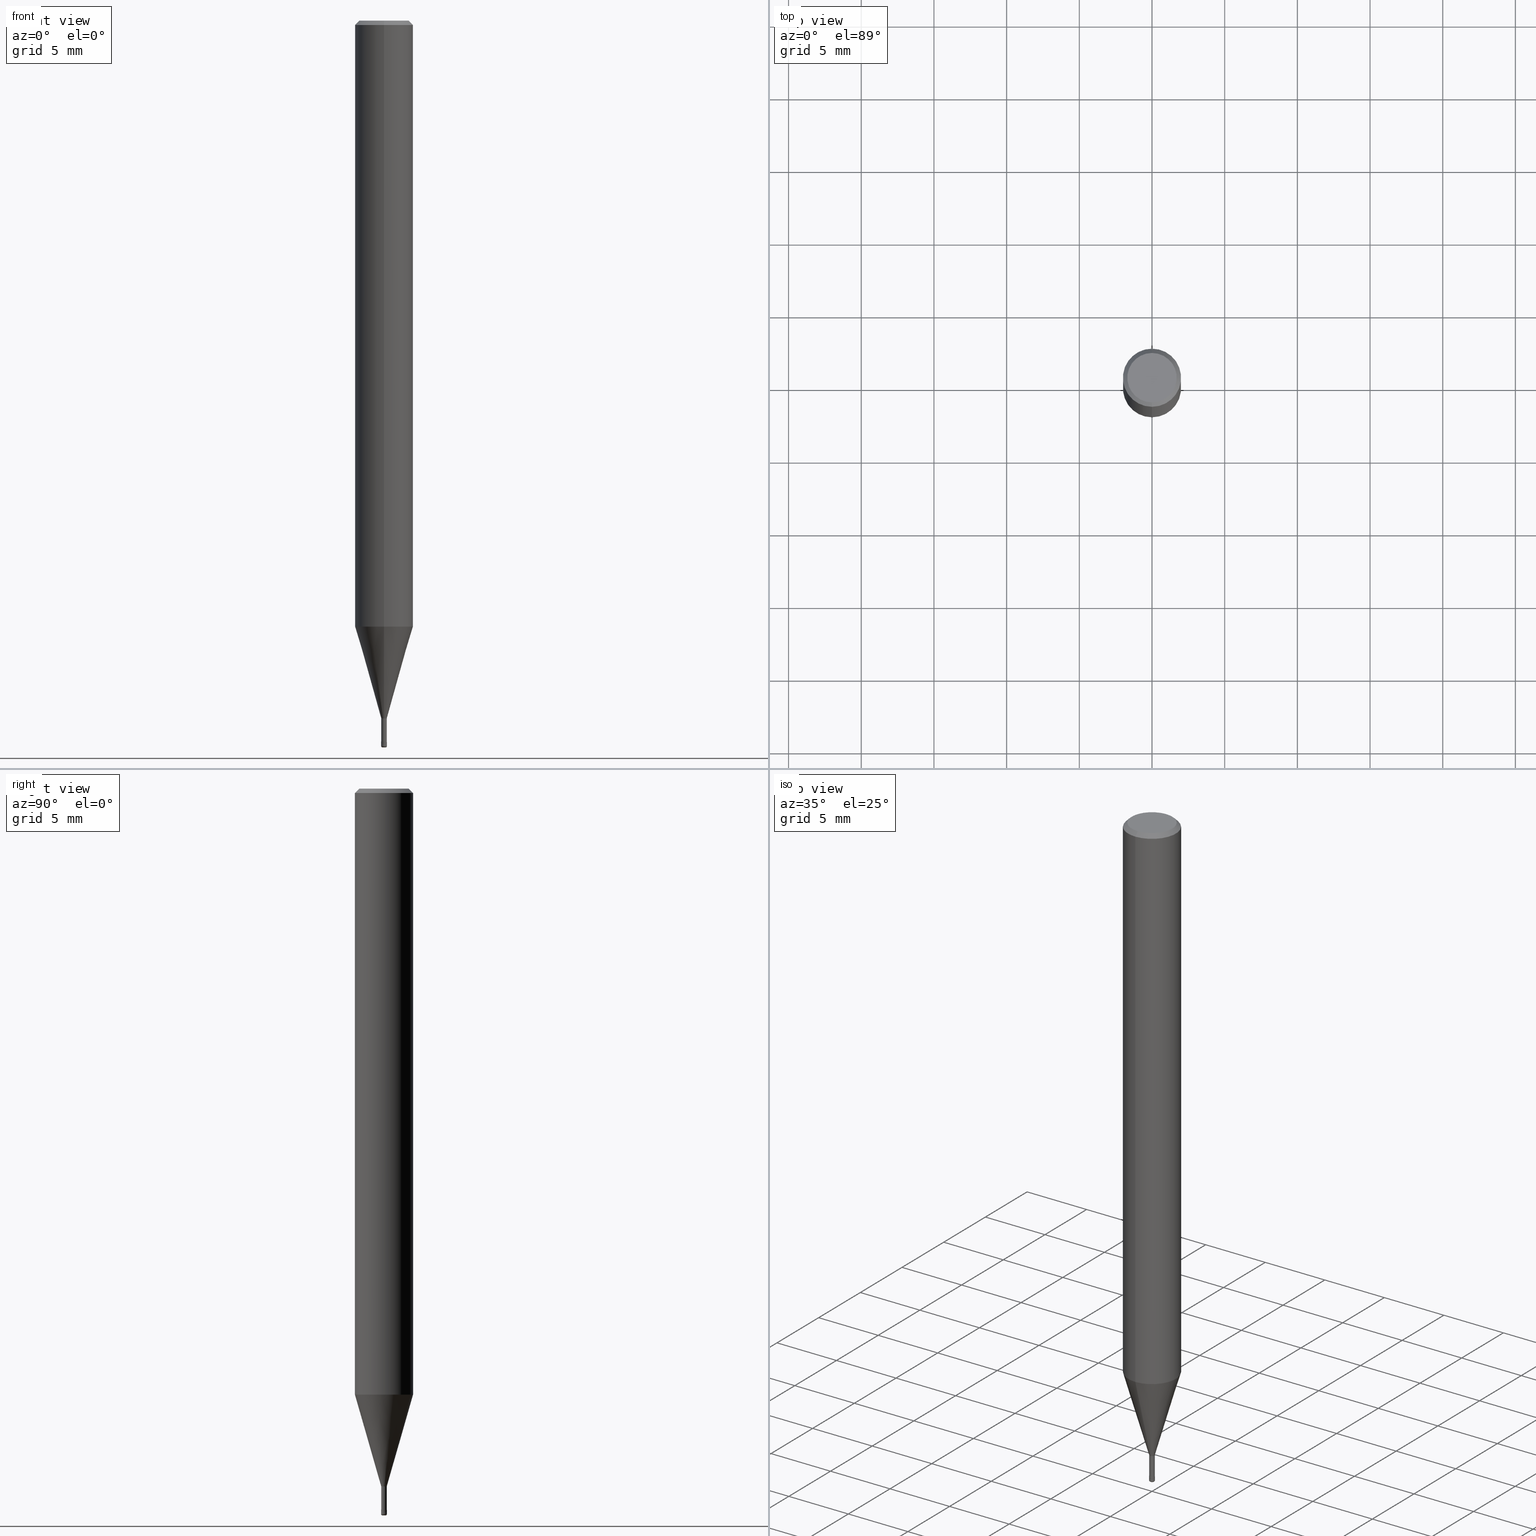
[diagram: canonical four-view strip — front | top / right | iso, engineering-drawing reading convention]
A machine part, canonical four-view strip (front | top / right | iso — engineering-drawing reading convention). The complete STEP part file that produces these views, byte-faithful:
ISO-10303-21;
HEADER;
FILE_DESCRIPTION(('no description'),'unknown implementation level');
FILE_NAME('HLRS2004-01-020-Huellk.stp','  ',('CIMSOURCE GmbH'),('CADClick - KiM GmbH - www.kimweb.de'),'unknown preprocess','ACIS','unknown authorization');
FILE_SCHEMA(('automotive_design'));
ENDSEC;
DATA;
#1=MECHANICAL_DESIGN_GEOMETRIC_PRESENTATION_REPRESENTATION(' ',(#14,#15,#16,#17,#18,#19,#20,#21,#22,#23,#24,#25,#26,#27,#28,#29,#30,#31,#32,#33,#34,#35,#36,#37,#38,#39,#40,#41,#42,#43,#44,#45,#46,#47,#48,#49,#50,#51,#52,#53,#54,#55,#56,#57,#58,#59,#60,#61,#62,#63,#64,#65,#66,#67,#68,#69,#70,#71,#72,#73,#74,#75,#76,#77,#78,#79,#80),#10);
#2=PRODUCT_DEFINITION_CONTEXT('',#81,'design');
#3=APPLICATION_PROTOCOL_DEFINITION('INTERNATIONAL STANDARD','automotive_design',1994,#81);
#4=PRODUCT_CATEGORY_RELATIONSHIP('NONE','NONE',#82,#83);
#5=SHAPE_DEFINITION_REPRESENTATION(#84,#85);
#6=PRODUCT_DEFINITION_CONTEXT('',#86,'design');
#7=APPLICATION_PROTOCOL_DEFINITION('INTERNATIONAL STANDARD','automotive_design',1994,#86);
#8=PRODUCT_CATEGORY_RELATIONSHIP('NONE','NONE',#87,#88);
#9=SHAPE_DEFINITION_REPRESENTATION(#89,#90);
#10= (GEOMETRIC_REPRESENTATION_CONTEXT(3)GLOBAL_UNCERTAINTY_ASSIGNED_CONTEXT((#93))GLOBAL_UNIT_ASSIGNED_CONTEXT((#95,#96,#97))REPRESENTATION_CONTEXT('NONE','WORKSPACE'));
#14=STYLED_ITEM('',(#99),#100);
#15=STYLED_ITEM('',(#101),#102);
#16=STYLED_ITEM('',(#103),#104);
#17=STYLED_ITEM('',(#105),#106);
#18=STYLED_ITEM('',(#107),#108);
#19=STYLED_ITEM('',(#109),#110);
#20=STYLED_ITEM('',(#111),#112);
#21=STYLED_ITEM('',(#113),#114);
#22=STYLED_ITEM('',(#115),#116);
#23=STYLED_ITEM('',(#117),#118);
#24=STYLED_ITEM('',(#119),#120);
#25=STYLED_ITEM('',(#121),#122);
#26=STYLED_ITEM('',(#123),#124);
#27=STYLED_ITEM('',(#125),#126);
#28=STYLED_ITEM('',(#127),#128);
#29=STYLED_ITEM('',(#129),#130);
#30=STYLED_ITEM('',(#131),#132);
#31=STYLED_ITEM('',(#133),#134);
#32=STYLED_ITEM('',(#135),#136);
#33=STYLED_ITEM('',(#137),#138);
#34=STYLED_ITEM('',(#139),#140);
#35=STYLED_ITEM('',(#141),#142);
#36=STYLED_ITEM('',(#143),#144);
#37=STYLED_ITEM('',(#145),#146);
#38=STYLED_ITEM('',(#147),#148);
#39=STYLED_ITEM('',(#149),#150);
#40=STYLED_ITEM('',(#151),#152);
#41=STYLED_ITEM('',(#153),#154);
#42=STYLED_ITEM('',(#155),#156);
#43=STYLED_ITEM('',(#157),#158);
#44=STYLED_ITEM('',(#159),#160);
#45=STYLED_ITEM('',(#161),#162);
#46=STYLED_ITEM('',(#163),#164);
#47=STYLED_ITEM('',(#165),#166);
#48=STYLED_ITEM('',(#167),#168);
#49=STYLED_ITEM('',(#169),#170);
#50=STYLED_ITEM('',(#171),#172);
#51=STYLED_ITEM('',(#173),#174);
#52=STYLED_ITEM('',(#175),#176);
#53=STYLED_ITEM('',(#177),#178);
#54=STYLED_ITEM('',(#179),#180);
#55=STYLED_ITEM('',(#181),#182);
#56=STYLED_ITEM('',(#183),#184);
#57=STYLED_ITEM('',(#185),#186);
#58=STYLED_ITEM('',(#187),#188);
#59=STYLED_ITEM('',(#189),#190);
#60=STYLED_ITEM('',(#191),#192);
#61=STYLED_ITEM('',(#193),#194);
#62=STYLED_ITEM('',(#195),#196);
#63=STYLED_ITEM('',(#197),#198);
#64=STYLED_ITEM('',(#199),#200);
#65=STYLED_ITEM('',(#201),#202);
#66=STYLED_ITEM('',(#203),#204);
#67=STYLED_ITEM('',(#205),#206);
#68=STYLED_ITEM('',(#207),#208);
#69=STYLED_ITEM('',(#209),#210);
#70=STYLED_ITEM('',(#211),#212);
#71=STYLED_ITEM('',(#213),#214);
#72=STYLED_ITEM('',(#215),#216);
#73=STYLED_ITEM('',(#217),#218);
#74=STYLED_ITEM('',(#219),#220);
#75=STYLED_ITEM('',(#221),#222);
#76=STYLED_ITEM('',(#223),#224);
#77=STYLED_ITEM('',(#225),#226);
#78=STYLED_ITEM('',(#227),#228);
#79=STYLED_ITEM('',(#229),#230);
#80=STYLED_ITEM('',(#231),#232);
#81=APPLICATION_CONTEXT(' ');
#82=PRODUCT_CATEGORY('part','NONE');
#83=PRODUCT_RELATED_PRODUCT_CATEGORY('detail',' ',(#233));
#84=PRODUCT_DEFINITION_SHAPE('NONE','NONE',#234);
#85=ADVANCED_BREP_SHAPE_REPRESENTATION('1',(#220,#235),#10);
#86=APPLICATION_CONTEXT(' ');
#87=PRODUCT_CATEGORY('part','NONE');
#88=PRODUCT_RELATED_PRODUCT_CATEGORY('detail',' ',(#236));
#89=PRODUCT_DEFINITION_SHAPE('NONE','NONE',#237);
#90=ADVANCED_BREP_SHAPE_REPRESENTATION('2',(#192,#238),#10);
#93=UNCERTAINTY_MEASURE_WITH_UNIT(LENGTH_MEASURE(1.0E-006),#95,'','');
#95= (CONVERSION_BASED_UNIT('MILLIMETRE',#241)LENGTH_UNIT()NAMED_UNIT(#244));
#96= (NAMED_UNIT(#246)PLANE_ANGLE_UNIT()SI_UNIT($,.RADIAN.));
#97= (NAMED_UNIT(#246)SOLID_ANGLE_UNIT()SI_UNIT($,.STERADIAN.));
#99=PRESENTATION_STYLE_ASSIGNMENT((#252));
#100=VERTEX_POINT('',#253);
#101=PRESENTATION_STYLE_ASSIGNMENT((#254));
#102=VERTEX_POINT('',#255);
#103=PRESENTATION_STYLE_ASSIGNMENT((#256));
#104=ADVANCED_FACE('',(#257),#258,.T.);
#105=PRESENTATION_STYLE_ASSIGNMENT((#259));
#106=VERTEX_POINT('',#260);
#107=PRESENTATION_STYLE_ASSIGNMENT((#261));
#108=EDGE_CURVE('',#100,#164,#262,.T.);
#109=PRESENTATION_STYLE_ASSIGNMENT((#263));
#110=VERTEX_POINT('',#264);
#111=PRESENTATION_STYLE_ASSIGNMENT((#265));
#112=EDGE_CURVE('',#182,#226,#266,.T.);
#113=PRESENTATION_STYLE_ASSIGNMENT((#267));
#114=ADVANCED_FACE('',(#268),#269,.T.);
#115=PRESENTATION_STYLE_ASSIGNMENT((#270));
#116=VERTEX_POINT('',#271);
#117=PRESENTATION_STYLE_ASSIGNMENT((#272));
#118=ADVANCED_FACE('',(#273),#274,.T.);
#119=PRESENTATION_STYLE_ASSIGNMENT((#275));
#120=VERTEX_POINT('',#276);
#121=PRESENTATION_STYLE_ASSIGNMENT((#277));
#122=EDGE_CURVE('',#224,#230,#278,.T.);
#123=PRESENTATION_STYLE_ASSIGNMENT((#279));
#124=EDGE_CURVE('',#230,#100,#280,.T.);
#125=PRESENTATION_STYLE_ASSIGNMENT((#281));
#126=VERTEX_POINT('',#282);
#127=PRESENTATION_STYLE_ASSIGNMENT((#283));
#128=EDGE_CURVE('',#226,#182,#284,.T.);
#129=PRESENTATION_STYLE_ASSIGNMENT((#285));
#130=EDGE_CURVE('',#116,#106,#286,.T.);
#131=PRESENTATION_STYLE_ASSIGNMENT((#287));
#132=EDGE_CURVE('',#218,#116,#288,.T.);
#133=PRESENTATION_STYLE_ASSIGNMENT((#289));
#134=EDGE_CURVE('',#164,#174,#290,.T.);
#135=PRESENTATION_STYLE_ASSIGNMENT((#291));
#136=EDGE_CURVE('',#178,#218,#292,.T.);
#137=PRESENTATION_STYLE_ASSIGNMENT((#293));
#138=ADVANCED_FACE('',(#294),#295,.T.);
#139=PRESENTATION_STYLE_ASSIGNMENT((#296));
#140=ADVANCED_FACE('',(#297),#298,.T.);
#141=PRESENTATION_STYLE_ASSIGNMENT((#299));
#142=EDGE_CURVE('',#100,#230,#300,.T.);
#143=PRESENTATION_STYLE_ASSIGNMENT((#301));
#144=EDGE_CURVE('',#110,#158,#302,.T.);
#145=PRESENTATION_STYLE_ASSIGNMENT((#303));
#146=VERTEX_POINT('',#304);
#147=PRESENTATION_STYLE_ASSIGNMENT((#305));
#148=ADVANCED_FACE('',(#306),#307,.T.);
#149=PRESENTATION_STYLE_ASSIGNMENT((#308));
#150=EDGE_CURVE('',#146,#102,#309,.T.);
#151=PRESENTATION_STYLE_ASSIGNMENT((#310));
#152=ADVANCED_FACE('',(#311),#312,.T.);
#153=PRESENTATION_STYLE_ASSIGNMENT((#313));
#154=EDGE_CURVE('',#158,#182,#314,.T.);
#155=PRESENTATION_STYLE_ASSIGNMENT((#315));
#156=EDGE_CURVE('',#102,#116,#316,.T.);
#157=PRESENTATION_STYLE_ASSIGNMENT((#317));
#158=VERTEX_POINT('',#318);
#159=PRESENTATION_STYLE_ASSIGNMENT((#319));
#160=EDGE_CURVE('',#158,#110,#320,.T.);
#161=PRESENTATION_STYLE_ASSIGNMENT((#321));
#162=EDGE_CURVE('',#120,#224,#322,.T.);
#163=PRESENTATION_STYLE_ASSIGNMENT((#323));
#164=VERTEX_POINT('',#324);
#165=PRESENTATION_STYLE_ASSIGNMENT((#325));
#166=EDGE_CURVE('',#196,#110,#326,.T.);
#167=PRESENTATION_STYLE_ASSIGNMENT((#327));
#168=EDGE_CURVE('',#126,#196,#328,.T.);
#169=PRESENTATION_STYLE_ASSIGNMENT((#329));
#170=ADVANCED_FACE('',(#330),#331,.T.);
#171=PRESENTATION_STYLE_ASSIGNMENT((#332));
#172=ADVANCED_FACE('',(#333),#334,.T.);
#173=PRESENTATION_STYLE_ASSIGNMENT((#335));
#174=VERTEX_POINT('',#336);
#175=PRESENTATION_STYLE_ASSIGNMENT((#337));
#176=EDGE_CURVE('',#226,#110,#338,.T.);
#177=PRESENTATION_STYLE_ASSIGNMENT((#339));
#178=VERTEX_POINT('',#340);
#179=PRESENTATION_STYLE_ASSIGNMENT((#341));
#180=ADVANCED_FACE('',(#342),#343,.T.);
#181=PRESENTATION_STYLE_ASSIGNMENT((#344));
#182=VERTEX_POINT('',#345);
#183=PRESENTATION_STYLE_ASSIGNMENT((#346));
#184=ADVANCED_FACE('',(#347),#348,.T.);
#185=PRESENTATION_STYLE_ASSIGNMENT((#349));
#186=EDGE_CURVE('',#158,#126,#350,.T.);
#187=PRESENTATION_STYLE_ASSIGNMENT((#351));
#188=EDGE_CURVE('',#146,#106,#352,.T.);
#189=PRESENTATION_STYLE_ASSIGNMENT((#353));
#190=ADVANCED_FACE('',(#354),#355,.T.);
#191=PRESENTATION_STYLE_ASSIGNMENT((#356));
#192=MANIFOLD_SOLID_BREP('2',#357);
#193=PRESENTATION_STYLE_ASSIGNMENT((#358));
#194=EDGE_CURVE('',#106,#146,#359,.T.);
#195=PRESENTATION_STYLE_ASSIGNMENT((#360));
#196=VERTEX_POINT('',#361);
#197=PRESENTATION_STYLE_ASSIGNMENT((#362));
#198=ADVANCED_FACE('',(#363),#364,.T.);
#199=PRESENTATION_STYLE_ASSIGNMENT((#365));
#200=EDGE_CURVE('',#120,#174,#366,.T.);
#201=PRESENTATION_STYLE_ASSIGNMENT((#367));
#202=EDGE_CURVE('',#164,#224,#368,.T.);
#203=PRESENTATION_STYLE_ASSIGNMENT((#369));
#204=ADVANCED_FACE('',(#370),#371,.T.);
#205=PRESENTATION_STYLE_ASSIGNMENT((#372));
#206=EDGE_CURVE('',#102,#178,#373,.T.);
#207=PRESENTATION_STYLE_ASSIGNMENT((#374));
#208=EDGE_CURVE('',#116,#102,#375,.T.);
#209=PRESENTATION_STYLE_ASSIGNMENT((#376));
#210=ADVANCED_FACE('',(#377),#378,.T.);
#211=PRESENTATION_STYLE_ASSIGNMENT((#379));
#212=EDGE_CURVE('',#218,#178,#380,.T.);
#213=PRESENTATION_STYLE_ASSIGNMENT((#381));
#214=EDGE_CURVE('',#196,#126,#382,.T.);
#215=PRESENTATION_STYLE_ASSIGNMENT((#383));
#216=ADVANCED_FACE('',(#384,#385),#386,.T.);
#217=PRESENTATION_STYLE_ASSIGNMENT((#387));
#218=VERTEX_POINT('',#388);
#219=PRESENTATION_STYLE_ASSIGNMENT((#389));
#220=MANIFOLD_SOLID_BREP('1',#390);
#221=PRESENTATION_STYLE_ASSIGNMENT((#391));
#222=EDGE_CURVE('',#174,#120,#392,.T.);
#223=PRESENTATION_STYLE_ASSIGNMENT((#393));
#224=VERTEX_POINT('',#394);
#225=PRESENTATION_STYLE_ASSIGNMENT((#395));
#226=VERTEX_POINT('',#396);
#227=PRESENTATION_STYLE_ASSIGNMENT((#397));
#228=EDGE_CURVE('',#224,#164,#398,.T.);
#229=PRESENTATION_STYLE_ASSIGNMENT((#399));
#230=VERTEX_POINT('',#400);
#231=PRESENTATION_STYLE_ASSIGNMENT((#401));
#232=ADVANCED_FACE('',(#402),#403,.T.);
#233=PRODUCT('1','1','PART-1-DESC',(#404));
#234=PRODUCT_DEFINITION('NONE','NONE',#405,#2);
#235=AXIS2_PLACEMENT_3D('',#406,#407,#408);
#236=PRODUCT('2','2','PART-2-DESC',(#409));
#237=PRODUCT_DEFINITION('NONE','NONE',#410,#6);
#238=AXIS2_PLACEMENT_3D('',#411,#412,#413);
#241=LENGTH_MEASURE_WITH_UNIT(LENGTH_MEASURE(1.0),#414);
#244=DIMENSIONAL_EXPONENTS(1.0,0.0,0.0,0.0,0.0,0.0,0.0);
#246=DIMENSIONAL_EXPONENTS(0.0,0.0,0.0,0.0,0.0,0.0,0.0);
#252=POINT_STYLE(' ',#415,POSITIVE_LENGTH_MEASURE(1.0E-006),#416);
#253=CARTESIAN_POINT('',(0.0,1.7,0.0));
#254=POINT_STYLE(' ',#417,POSITIVE_LENGTH_MEASURE(1.0E-006),#418);
#255=CARTESIAN_POINT('',(2.3261397690856E-017,-0.18995,-48.0));
#256=SURFACE_STYLE_USAGE(.BOTH.,#419);
#257=FACE_OUTER_BOUND('',#420,.T.);
#258=CYLINDRICAL_SURFACE('',#421,2.0);
#259=POINT_STYLE(' ',#422,POSITIVE_LENGTH_MEASURE(1.0E-006),#423);
#260=CARTESIAN_POINT('',(0.0,0.18995,-49.6));
#261=CURVE_STYLE('',#424,POSITIVE_LENGTH_MEASURE(1.0E-006),#425);
#262=LINE('',#426,#427);
#263=POINT_STYLE(' ',#428,POSITIVE_LENGTH_MEASURE(1.0E-006),#429);
#264=CARTESIAN_POINT('',(0.0,0.2,-49.9));
#265=CURVE_STYLE('',#430,POSITIVE_LENGTH_MEASURE(1.0E-006),#431);
#266=CIRCLE('',#432,0.1999);
#267=SURFACE_STYLE_USAGE(.BOTH.,#433);
#268=FACE_OUTER_BOUND('',#434,.T.);
#269=CONICAL_SURFACE('',#435,1.85,0.785398163397453);
#270=POINT_STYLE(' ',#436,POSITIVE_LENGTH_MEASURE(1.0E-006),#437);
#271=CARTESIAN_POINT('',(0.0,0.18995,-48.0));
#272=SURFACE_STYLE_USAGE(.BOTH.,#438);
#273=FACE_OUTER_BOUND('',#439,.T.);
#274=CONICAL_SURFACE('',#440,1.09495,0.279261921280279);
#275=POINT_STYLE(' ',#441,POSITIVE_LENGTH_MEASURE(1.0E-006),#442);
#276=CARTESIAN_POINT('',(2.44921270764475E-016,-2.0,-41.688));
#277=CURVE_STYLE('',#443,POSITIVE_LENGTH_MEASURE(1.0E-006),#444);
#278=LINE('',#445,#446);
#279=CURVE_STYLE('',#447,POSITIVE_LENGTH_MEASURE(1.0E-006),#448);
#280=CIRCLE('',#449,1.7);
#281=POINT_STYLE(' ',#450,POSITIVE_LENGTH_MEASURE(1.0E-006),#451);
#282=CARTESIAN_POINT('',(1.22460635382238E-017,-0.1,-50.0));
#283=CURVE_STYLE('',#452,POSITIVE_LENGTH_MEASURE(1.0E-006),#453);
#284=CIRCLE('',#454,0.1999);
#285=CURVE_STYLE('',#455,POSITIVE_LENGTH_MEASURE(1.0E-006),#456);
#286=LINE('',#457,#458);
#287=CURVE_STYLE('',#459,POSITIVE_LENGTH_MEASURE(1.0E-006),#460);
#288=LINE('',#461,#462);
#289=CURVE_STYLE('',#463,POSITIVE_LENGTH_MEASURE(1.0E-006),#464);
#290=LINE('',#465,#466);
#291=CURVE_STYLE('',#467,POSITIVE_LENGTH_MEASURE(1.0E-006),#468);
#292=CIRCLE('',#469,1.99995);
#293=SURFACE_STYLE_USAGE(.BOTH.,#470);
#294=FACE_OUTER_BOUND('',#471,.T.);
#295=PLANE('',#472);
#296=SURFACE_STYLE_USAGE(.BOTH.,#473);
#297=FACE_OUTER_BOUND('',#474,.T.);
#298=CONICAL_SURFACE('',#475,0.19995,0.000333333320987711);
#299=CURVE_STYLE('',#476,POSITIVE_LENGTH_MEASURE(1.0E-006),#477);
#300=CIRCLE('',#478,1.7);
#301=CURVE_STYLE('',#479,POSITIVE_LENGTH_MEASURE(1.0E-006),#480);
#302=CIRCLE('',#481,0.2);
#303=POINT_STYLE(' ',#482,POSITIVE_LENGTH_MEASURE(1.0E-006),#483);
#304=CARTESIAN_POINT('',(2.32613976908561E-017,-0.18995,-49.6));
#305=SURFACE_STYLE_USAGE(.BOTH.,#484);
#306=FACE_OUTER_BOUND('',#485,.T.);
#307=CYLINDRICAL_SURFACE('',#486,0.18995);
#308=CURVE_STYLE('',#487,POSITIVE_LENGTH_MEASURE(1.0E-006),#488);
#309=LINE('',#489,#490);
#310=SURFACE_STYLE_USAGE(.BOTH.,#491);
#311=FACE_OUTER_BOUND('',#492,.T.);
#312=CONICAL_SURFACE('',#493,1.85,0.785398163397453);
#313=CURVE_STYLE('',#494,POSITIVE_LENGTH_MEASURE(1.0E-006),#495);
#314=LINE('',#496,#497);
#315=CURVE_STYLE('',#498,POSITIVE_LENGTH_MEASURE(1.0E-006),#499);
#316=CIRCLE('',#500,0.18995);
#317=POINT_STYLE(' ',#501,POSITIVE_LENGTH_MEASURE(1.0E-006),#502);
#318=CARTESIAN_POINT('',(2.44921270764475E-017,-0.2,-49.9));
#319=CURVE_STYLE('',#503,POSITIVE_LENGTH_MEASURE(1.0E-006),#504);
#320=CIRCLE('',#505,0.2);
#321=CURVE_STYLE('',#506,POSITIVE_LENGTH_MEASURE(1.0E-006),#507);
#322=LINE('',#508,#509);
#323=POINT_STYLE(' ',#510,POSITIVE_LENGTH_MEASURE(1.0E-006),#511);
#324=CARTESIAN_POINT('',(0.0,2.0,-0.299999999999997));
#325=CURVE_STYLE('',#512,POSITIVE_LENGTH_MEASURE(1.0E-006),#513);
#326=CIRCLE('',#514,0.1);
#327=CURVE_STYLE('',#515,POSITIVE_LENGTH_MEASURE(1.0E-006),#516);
#328=CIRCLE('',#517,0.1);
#329=SURFACE_STYLE_USAGE(.BOTH.,#518);
#330=FACE_OUTER_BOUND('',#519,.T.);
#331=CONICAL_SURFACE('',#520,1.09495,0.279261921280279);
#332=SURFACE_STYLE_USAGE(.BOTH.,#521);
#333=FACE_OUTER_BOUND('',#522,.T.);
#334=PLANE('',#523);
#335=POINT_STYLE(' ',#524,POSITIVE_LENGTH_MEASURE(1.0E-006),#525);
#336=CARTESIAN_POINT('',(0.0,2.0,-41.688));
#337=CURVE_STYLE('',#526,POSITIVE_LENGTH_MEASURE(1.0E-006),#527);
#338=LINE('',#528,#529);
#339=POINT_STYLE(' ',#530,POSITIVE_LENGTH_MEASURE(1.0E-006),#531);
#340=CARTESIAN_POINT('',(2.44915147732706E-016,-1.99995,-41.688));
#341=SURFACE_STYLE_USAGE(.BOTH.,#532);
#342=FACE_OUTER_BOUND('',#533,.T.);
#343=CYLINDRICAL_SURFACE('',#534,0.18995);
#344=POINT_STYLE(' ',#535,POSITIVE_LENGTH_MEASURE(1.0E-006),#536);
#345=CARTESIAN_POINT('',(2.44798810129093E-017,-0.1999,-49.6));
#346=SURFACE_STYLE_USAGE(.BOTH.,#537);
#347=FACE_OUTER_BOUND('',#538,.T.);
#348=TOROIDAL_SURFACE('',#539,0.0999999999999997,0.1);
#349=CURVE_STYLE('',#540,POSITIVE_LENGTH_MEASURE(1.0E-006),#541);
#350=CIRCLE('',#542,0.1);
#351=CURVE_STYLE('',#543,POSITIVE_LENGTH_MEASURE(1.0E-006),#544);
#352=CIRCLE('',#545,0.18995);
#353=SURFACE_STYLE_USAGE(.BOTH.,#546);
#354=FACE_OUTER_BOUND('',#547,.T.);
#355=TOROIDAL_SURFACE('',#548,0.0999999999999997,0.1);
#356=SURFACE_STYLE_USAGE(.BOTH.,#549);
#357=CLOSED_SHELL('',(#184,#140,#138,#232,#190,#210));
#358=CURVE_STYLE('',#550,POSITIVE_LENGTH_MEASURE(1.0E-006),#551);
#359=CIRCLE('',#552,0.18995);
#360=POINT_STYLE(' ',#553,POSITIVE_LENGTH_MEASURE(1.0E-006),#554);
#361=CARTESIAN_POINT('',(0.0,0.1,-50.0));
#362=SURFACE_STYLE_USAGE(.BOTH.,#555);
#363=FACE_OUTER_BOUND('',#556,.T.);
#364=CYLINDRICAL_SURFACE('',#557,2.0);
#365=CURVE_STYLE('',#558,POSITIVE_LENGTH_MEASURE(1.0E-006),#559);
#366=CIRCLE('',#560,2.0);
#367=CURVE_STYLE('',#561,POSITIVE_LENGTH_MEASURE(1.0E-006),#562);
#368=CIRCLE('',#563,2.0);
#369=SURFACE_STYLE_USAGE(.BOTH.,#564);
#370=FACE_OUTER_BOUND('',#565,.T.);
#371=PLANE('',#566);
#372=CURVE_STYLE('',#567,POSITIVE_LENGTH_MEASURE(1.0E-006),#568);
#373=LINE('',#569,#570);
#374=CURVE_STYLE('',#571,POSITIVE_LENGTH_MEASURE(1.0E-006),#572);
#375=CIRCLE('',#573,0.18995);
#376=SURFACE_STYLE_USAGE(.BOTH.,#574);
#377=FACE_OUTER_BOUND('',#575,.T.);
#378=PLANE('',#576);
#379=CURVE_STYLE('',#577,POSITIVE_LENGTH_MEASURE(1.0E-006),#578);
#380=CIRCLE('',#579,1.99995);
#381=CURVE_STYLE('',#580,POSITIVE_LENGTH_MEASURE(1.0E-006),#581);
#382=CIRCLE('',#582,0.1);
#383=SURFACE_STYLE_USAGE(.BOTH.,#583);
#384=FACE_OUTER_BOUND('',#584,.T.);
#385=FACE_BOUND('',#585,.T.);
#386=PLANE('',#586);
#387=POINT_STYLE(' ',#587,POSITIVE_LENGTH_MEASURE(1.0E-006),#588);
#388=CARTESIAN_POINT('',(0.0,1.99995,-41.688));
#389=SURFACE_STYLE_USAGE(.BOTH.,#589);
#390=CLOSED_SHELL('',(#148,#170,#104,#114,#216,#172,#152,#198,#118,#180,#204));
#391=CURVE_STYLE('',#590,POSITIVE_LENGTH_MEASURE(1.0E-006),#591);
#392=CIRCLE('',#592,2.0);
#393=POINT_STYLE(' ',#593,POSITIVE_LENGTH_MEASURE(1.0E-006),#594);
#394=CARTESIAN_POINT('',(2.44921270764475E-016,-2.0,-0.299999999999997));
#395=POINT_STYLE(' ',#595,POSITIVE_LENGTH_MEASURE(1.0E-006),#596);
#396=CARTESIAN_POINT('',(0.0,0.1999,-49.6));
#397=CURVE_STYLE('',#597,POSITIVE_LENGTH_MEASURE(1.0E-006),#598);
#398=CIRCLE('',#599,2.0);
#399=POINT_STYLE(' ',#600,POSITIVE_LENGTH_MEASURE(1.0E-006),#601);
#400=CARTESIAN_POINT('',(2.08183080149804E-016,-1.7,0.0));
#401=SURFACE_STYLE_USAGE(.BOTH.,#602);
#402=FACE_OUTER_BOUND('',#603,.T.);
#403=CONICAL_SURFACE('',#604,0.19995,0.000333333320987711);
#404=PRODUCT_CONTEXT('',#81,'mechanical');
#405=PRODUCT_DEFINITION_FORMATION_WITH_SPECIFIED_SOURCE(' ','NONE',#233,.NOT_KNOWN.);
#406=CARTESIAN_POINT('',(0.0,0.0,0.0));
#407=DIRECTION('',(0.0,0.0,1.0));
#408=DIRECTION('',(1.0,0.0,0.0));
#409=PRODUCT_CONTEXT('',#86,'mechanical');
#410=PRODUCT_DEFINITION_FORMATION_WITH_SPECIFIED_SOURCE(' ','NONE',#236,.NOT_KNOWN.);
#411=CARTESIAN_POINT('',(0.0,0.0,0.0));
#412=DIRECTION('',(0.0,0.0,1.0));
#413=DIRECTION('',(1.0,0.0,0.0));
#414= (NAMED_UNIT(#244)LENGTH_UNIT()SI_UNIT(.MILLI.,.METRE.));
#415=PRE_DEFINED_MARKER('');
#416=COLOUR_RGB('',0.498039215803146,0.498039215803146,0.498039215803146);
#417=PRE_DEFINED_MARKER('');
#418=COLOUR_RGB('',0.498039215803146,0.498039215803146,0.498039215803146);
#419=SURFACE_SIDE_STYLE('',(#606));
#420=EDGE_LOOP('',(#607,#608,#609,#610));
#421=AXIS2_PLACEMENT_3D('',#611,#612,#613);
#422=PRE_DEFINED_MARKER('');
#423=COLOUR_RGB('',0.498039215803146,0.498039215803146,0.498039215803146);
#424=DRAUGHTING_PRE_DEFINED_CURVE_FONT('continuous');
#425=COLOUR_RGB('',0.498039215803146,0.498039215803146,0.498039215803146);
#426=CARTESIAN_POINT('',(-2.2655217545714E-016,1.85,-0.149999999999999));
#427=VECTOR('',#614,1.0);
#428=PRE_DEFINED_MARKER('');
#429=COLOUR_RGB('',0.800000011920929,0.800000011920929,0.800000011920929);
#430=DRAUGHTING_PRE_DEFINED_CURVE_FONT('continuous');
#431=COLOUR_RGB('',0.800000011920929,0.800000011920929,0.800000011920929);
#432=AXIS2_PLACEMENT_3D('',#615,#616,#617);
#433=SURFACE_SIDE_STYLE('',(#618));
#434=EDGE_LOOP('',(#619,#620,#621,#622));
#435=AXIS2_PLACEMENT_3D('',#623,#624,#625);
#436=PRE_DEFINED_MARKER('');
#437=COLOUR_RGB('',0.498039215803146,0.498039215803146,0.498039215803146);
#438=SURFACE_SIDE_STYLE('',(#626));
#439=EDGE_LOOP('',(#627,#628,#629,#630));
#440=AXIS2_PLACEMENT_3D('',#631,#632,#633);
#441=PRE_DEFINED_MARKER('');
#442=COLOUR_RGB('',0.498039215803146,0.498039215803146,0.498039215803146);
#443=DRAUGHTING_PRE_DEFINED_CURVE_FONT('continuous');
#444=COLOUR_RGB('',0.498039215803146,0.498039215803146,0.498039215803146);
#445=CARTESIAN_POINT('',(2.2655217545714E-016,-1.85,-0.149999999999999));
#446=VECTOR('',#634,1.0);
#447=DRAUGHTING_PRE_DEFINED_CURVE_FONT('continuous');
#448=COLOUR_RGB('',0.498039215803146,0.498039215803146,0.498039215803146);
#449=AXIS2_PLACEMENT_3D('',#635,#636,#637);
#450=PRE_DEFINED_MARKER('');
#451=COLOUR_RGB('',0.800000011920929,0.800000011920929,0.800000011920929);
#452=DRAUGHTING_PRE_DEFINED_CURVE_FONT('continuous');
#453=COLOUR_RGB('',0.800000011920929,0.800000011920929,0.800000011920929);
#454=AXIS2_PLACEMENT_3D('',#638,#639,#640);
#455=DRAUGHTING_PRE_DEFINED_CURVE_FONT('continuous');
#456=COLOUR_RGB('',0.498039215803146,0.498039215803146,0.498039215803146);
#457=CARTESIAN_POINT('',(-2.32613976908561E-017,0.18995,-48.8));
#458=VECTOR('',#641,1.0);
#459=DRAUGHTING_PRE_DEFINED_CURVE_FONT('continuous');
#460=COLOUR_RGB('',0.498039215803146,0.498039215803146,0.498039215803146);
#461=CARTESIAN_POINT('',(-1.34088272711781E-016,1.09495,-44.844));
#462=VECTOR('',#642,1.0);
#463=DRAUGHTING_PRE_DEFINED_CURVE_FONT('continuous');
#464=COLOUR_RGB('',0.498039215803146,0.498039215803146,0.498039215803146);
#465=CARTESIAN_POINT('',(-2.44921270764475E-016,2.0,-20.994));
#466=VECTOR('',#643,1.0);
#467=DRAUGHTING_PRE_DEFINED_CURVE_FONT('continuous');
#468=COLOUR_RGB('',0.498039215803146,0.498039215803146,0.498039215803146);
#469=AXIS2_PLACEMENT_3D('',#644,#645,#646);
#470=SURFACE_SIDE_STYLE('',(#647));
#471=EDGE_LOOP('',(#648,#649));
#472=AXIS2_PLACEMENT_3D('',#650,#651,#652);
#473=SURFACE_SIDE_STYLE('',(#653));
#474=EDGE_LOOP('',(#654,#655,#656,#657));
#475=AXIS2_PLACEMENT_3D('',#658,#659,#660);
#476=DRAUGHTING_PRE_DEFINED_CURVE_FONT('continuous');
#477=COLOUR_RGB('',0.498039215803146,0.498039215803146,0.498039215803146);
#478=AXIS2_PLACEMENT_3D('',#661,#662,#663);
#479=DRAUGHTING_PRE_DEFINED_CURVE_FONT('continuous');
#480=COLOUR_RGB('',0.800000011920929,0.800000011920929,0.800000011920929);
#481=AXIS2_PLACEMENT_3D('',#664,#665,#666);
#482=PRE_DEFINED_MARKER('');
#483=COLOUR_RGB('',0.498039215803146,0.498039215803146,0.498039215803146);
#484=SURFACE_SIDE_STYLE('',(#667));
#485=EDGE_LOOP('',(#668,#669,#670,#671));
#486=AXIS2_PLACEMENT_3D('',#672,#673,#674);
#487=DRAUGHTING_PRE_DEFINED_CURVE_FONT('continuous');
#488=COLOUR_RGB('',0.498039215803146,0.498039215803146,0.498039215803146);
#489=CARTESIAN_POINT('',(2.32613976908561E-017,-0.18995,-48.8));
#490=VECTOR('',#675,1.0);
#491=SURFACE_SIDE_STYLE('',(#676));
#492=EDGE_LOOP('',(#677,#678,#679,#680));
#493=AXIS2_PLACEMENT_3D('',#681,#682,#683);
#494=DRAUGHTING_PRE_DEFINED_CURVE_FONT('continuous');
#495=COLOUR_RGB('',0.800000011920929,0.800000011920929,0.800000011920929);
#496=CARTESIAN_POINT('',(2.44860040446784E-017,-0.19995,-49.75));
#497=VECTOR('',#684,1.0);
#498=DRAUGHTING_PRE_DEFINED_CURVE_FONT('continuous');
#499=COLOUR_RGB('',0.498039215803146,0.498039215803146,0.498039215803146);
#500=AXIS2_PLACEMENT_3D('',#685,#686,#687);
#501=PRE_DEFINED_MARKER('');
#502=COLOUR_RGB('',0.800000011920929,0.800000011920929,0.800000011920929);
#503=DRAUGHTING_PRE_DEFINED_CURVE_FONT('continuous');
#504=COLOUR_RGB('',0.800000011920929,0.800000011920929,0.800000011920929);
#505=AXIS2_PLACEMENT_3D('',#688,#689,#690);
#506=DRAUGHTING_PRE_DEFINED_CURVE_FONT('continuous');
#507=COLOUR_RGB('',0.498039215803146,0.498039215803146,0.498039215803146);
#508=CARTESIAN_POINT('',(2.44921270764475E-016,-2.0,-20.994));
#509=VECTOR('',#691,1.0);
#510=PRE_DEFINED_MARKER('');
#511=COLOUR_RGB('',0.498039215803146,0.498039215803146,0.498039215803146);
#512=DRAUGHTING_PRE_DEFINED_CURVE_FONT('continuous');
#513=COLOUR_RGB('',0.800000011920929,0.800000011920929,0.800000011920929);
#514=AXIS2_PLACEMENT_3D('',#692,#693,#694);
#515=DRAUGHTING_PRE_DEFINED_CURVE_FONT('continuous');
#516=COLOUR_RGB('',0.800000011920929,0.800000011920929,0.800000011920929);
#517=AXIS2_PLACEMENT_3D('',#695,#696,#697);
#518=SURFACE_SIDE_STYLE('',(#698));
#519=EDGE_LOOP('',(#699,#700,#701,#702));
#520=AXIS2_PLACEMENT_3D('',#703,#704,#705);
#521=SURFACE_SIDE_STYLE('',(#706));
#522=EDGE_LOOP('',(#707,#708));
#523=AXIS2_PLACEMENT_3D('',#709,#710,#711);
#524=PRE_DEFINED_MARKER('');
#525=COLOUR_RGB('',0.498039215803146,0.498039215803146,0.498039215803146);
#526=DRAUGHTING_PRE_DEFINED_CURVE_FONT('continuous');
#527=COLOUR_RGB('',0.800000011920929,0.800000011920929,0.800000011920929);
#528=CARTESIAN_POINT('',(-2.44860040446784E-017,0.19995,-49.75));
#529=VECTOR('',#712,1.0);
#530=PRE_DEFINED_MARKER('');
#531=COLOUR_RGB('',0.498039215803146,0.498039215803146,0.498039215803146);
#532=SURFACE_SIDE_STYLE('',(#713));
#533=EDGE_LOOP('',(#714,#715,#716,#717));
#534=AXIS2_PLACEMENT_3D('',#718,#719,#720);
#535=PRE_DEFINED_MARKER('');
#536=COLOUR_RGB('',0.800000011920929,0.800000011920929,0.800000011920929);
#537=SURFACE_SIDE_STYLE('',(#721));
#538=EDGE_LOOP('',(#722,#723,#724,#725));
#539=AXIS2_PLACEMENT_3D('',#726,#727,#728);
#540=DRAUGHTING_PRE_DEFINED_CURVE_FONT('continuous');
#541=COLOUR_RGB('',0.800000011920929,0.800000011920929,0.800000011920929);
#542=AXIS2_PLACEMENT_3D('',#729,#730,#731);
#543=DRAUGHTING_PRE_DEFINED_CURVE_FONT('continuous');
#544=COLOUR_RGB('',0.498039215803146,0.498039215803146,0.498039215803146);
#545=AXIS2_PLACEMENT_3D('',#732,#733,#734);
#546=SURFACE_SIDE_STYLE('',(#735));
#547=EDGE_LOOP('',(#736,#737,#738,#739));
#548=AXIS2_PLACEMENT_3D('',#740,#741,#742);
#549=SURFACE_SIDE_STYLE('',(#743));
#550=DRAUGHTING_PRE_DEFINED_CURVE_FONT('continuous');
#551=COLOUR_RGB('',0.498039215803146,0.498039215803146,0.498039215803146);
#552=AXIS2_PLACEMENT_3D('',#744,#745,#746);
#553=PRE_DEFINED_MARKER('');
#554=COLOUR_RGB('',0.800000011920929,0.800000011920929,0.800000011920929);
#555=SURFACE_SIDE_STYLE('',(#747));
#556=EDGE_LOOP('',(#748,#749,#750,#751));
#557=AXIS2_PLACEMENT_3D('',#752,#753,#754);
#558=DRAUGHTING_PRE_DEFINED_CURVE_FONT('continuous');
#559=COLOUR_RGB('',0.498039215803146,0.498039215803146,0.498039215803146);
#560=AXIS2_PLACEMENT_3D('',#755,#756,#757);
#561=DRAUGHTING_PRE_DEFINED_CURVE_FONT('continuous');
#562=COLOUR_RGB('',0.498039215803146,0.498039215803146,0.498039215803146);
#563=AXIS2_PLACEMENT_3D('',#758,#759,#760);
#564=SURFACE_SIDE_STYLE('',(#761));
#565=EDGE_LOOP('',(#762,#763));
#566=AXIS2_PLACEMENT_3D('',#764,#765,#766);
#567=DRAUGHTING_PRE_DEFINED_CURVE_FONT('continuous');
#568=COLOUR_RGB('',0.498039215803146,0.498039215803146,0.498039215803146);
#569=CARTESIAN_POINT('',(1.34088272711781E-016,-1.09495,-44.844));
#570=VECTOR('',#767,1.0);
#571=DRAUGHTING_PRE_DEFINED_CURVE_FONT('continuous');
#572=COLOUR_RGB('',0.498039215803146,0.498039215803146,0.498039215803146);
#573=AXIS2_PLACEMENT_3D('',#768,#769,#770);
#574=SURFACE_SIDE_STYLE('',(#771));
#575=EDGE_LOOP('',(#772,#773));
#576=AXIS2_PLACEMENT_3D('',#774,#775,#776);
#577=DRAUGHTING_PRE_DEFINED_CURVE_FONT('continuous');
#578=COLOUR_RGB('',0.498039215803146,0.498039215803146,0.498039215803146);
#579=AXIS2_PLACEMENT_3D('',#777,#778,#779);
#580=DRAUGHTING_PRE_DEFINED_CURVE_FONT('continuous');
#581=COLOUR_RGB('',0.800000011920929,0.800000011920929,0.800000011920929);
#582=AXIS2_PLACEMENT_3D('',#780,#781,#782);
#583=SURFACE_SIDE_STYLE('',(#783));
#584=EDGE_LOOP('',(#784,#785));
#585=EDGE_LOOP('',(#786,#787));
#586=AXIS2_PLACEMENT_3D('',#788,#789,#790);
#587=PRE_DEFINED_MARKER('');
#588=COLOUR_RGB('',0.498039215803146,0.498039215803146,0.498039215803146);
#589=SURFACE_SIDE_STYLE('',(#791));
#590=DRAUGHTING_PRE_DEFINED_CURVE_FONT('continuous');
#591=COLOUR_RGB('',0.498039215803146,0.498039215803146,0.498039215803146);
#592=AXIS2_PLACEMENT_3D('',#792,#793,#794);
#593=PRE_DEFINED_MARKER('');
#594=COLOUR_RGB('',0.498039215803146,0.498039215803146,0.498039215803146);
#595=PRE_DEFINED_MARKER('');
#596=COLOUR_RGB('',0.800000011920929,0.800000011920929,0.800000011920929);
#597=DRAUGHTING_PRE_DEFINED_CURVE_FONT('continuous');
#598=COLOUR_RGB('',0.498039215803146,0.498039215803146,0.498039215803146);
#599=AXIS2_PLACEMENT_3D('',#795,#796,#797);
#600=PRE_DEFINED_MARKER('');
#601=COLOUR_RGB('',0.498039215803146,0.498039215803146,0.498039215803146);
#602=SURFACE_SIDE_STYLE('',(#798));
#603=EDGE_LOOP('',(#799,#800,#801,#802));
#604=AXIS2_PLACEMENT_3D('',#803,#804,#805);
#606=SURFACE_STYLE_FILL_AREA(#806);
#607=ORIENTED_EDGE('',*,*,#134,.F.);
#608=ORIENTED_EDGE('',*,*,#202,.T.);
#609=ORIENTED_EDGE('',*,*,#162,.F.);
#610=ORIENTED_EDGE('',*,*,#222,.F.);
#611=CARTESIAN_POINT('',(0.0,0.0,-20.994));
#612=DIRECTION('',(-0.0,-0.0,1.0));
#613=DIRECTION('',(0.0,1.0,0.0));
#614=DIRECTION('',(-8.6592745707194E-017,0.707106781186551,-0.707106781186544));
#615=CARTESIAN_POINT('',(0.0,0.0,-49.6));
#616=DIRECTION('',(0.0,0.0,-1.0));
#617=DIRECTION('',(0.0,1.0,0.0));
#618=SURFACE_STYLE_FILL_AREA(#807);
#619=ORIENTED_EDGE('',*,*,#108,.F.);
#620=ORIENTED_EDGE('',*,*,#142,.T.);
#621=ORIENTED_EDGE('',*,*,#122,.F.);
#622=ORIENTED_EDGE('',*,*,#202,.F.);
#623=CARTESIAN_POINT('',(0.0,0.0,-0.149999999999999));
#624=DIRECTION('',(0.0,-0.0,-1.0));
#625=DIRECTION('',(0.0,1.0,0.0));
#626=SURFACE_STYLE_FILL_AREA(#808);
#627=ORIENTED_EDGE('',*,*,#132,.T.);
#628=ORIENTED_EDGE('',*,*,#156,.F.);
#629=ORIENTED_EDGE('',*,*,#206,.T.);
#630=ORIENTED_EDGE('',*,*,#136,.T.);
#631=CARTESIAN_POINT('',(0.0,0.0,-44.844));
#632=DIRECTION('',(-0.0,-0.0,1.0));
#633=DIRECTION('',(0.0,1.0,0.0));
#634=DIRECTION('',(-8.6592745707194E-017,0.707106781186551,0.707106781186544));
#635=CARTESIAN_POINT('',(0.0,0.0,0.0));
#636=DIRECTION('',(0.0,0.0,-1.0));
#637=DIRECTION('',(0.0,1.0,0.0));
#638=CARTESIAN_POINT('',(0.0,0.0,-49.6));
#639=DIRECTION('',(0.0,0.0,-1.0));
#640=DIRECTION('',(0.0,1.0,0.0));
#641=DIRECTION('',(0.0,0.0,-1.0));
#642=DIRECTION('',(3.37558135426109E-017,-0.275646238787252,-0.961259148743169));
#643=DIRECTION('',(0.0,0.0,-1.0));
#644=CARTESIAN_POINT('',(0.0,0.0,-41.688));
#645=DIRECTION('',(0.0,0.0,-1.0));
#646=DIRECTION('',(0.0,1.0,0.0));
#647=SURFACE_STYLE_FILL_AREA(#809);
#648=ORIENTED_EDGE('',*,*,#128,.F.);
#649=ORIENTED_EDGE('',*,*,#112,.F.);
#650=CARTESIAN_POINT('',(0.0,0.09995,-49.6));
#651=DIRECTION('',(-0.0,0.0,1.0));
#652=DIRECTION('',(0.0,-1.0,0.0));
#653=SURFACE_STYLE_FILL_AREA(#810);
#654=ORIENTED_EDGE('',*,*,#176,.F.);
#655=ORIENTED_EDGE('',*,*,#128,.T.);
#656=ORIENTED_EDGE('',*,*,#154,.F.);
#657=ORIENTED_EDGE('',*,*,#144,.F.);
#658=CARTESIAN_POINT('',(0.0,0.0,-49.75));
#659=DIRECTION('',(0.0,-0.0,-1.0));
#660=DIRECTION('',(0.0,1.0,0.0));
#661=CARTESIAN_POINT('',(0.0,0.0,0.0));
#662=DIRECTION('',(0.0,0.0,-1.0));
#663=DIRECTION('',(0.0,1.0,0.0));
#664=CARTESIAN_POINT('',(0.0,0.0,-49.9));
#665=DIRECTION('',(0.0,0.0,-1.0));
#666=DIRECTION('',(0.0,1.0,0.0));
#667=SURFACE_STYLE_FILL_AREA(#811);
#668=ORIENTED_EDGE('',*,*,#130,.F.);
#669=ORIENTED_EDGE('',*,*,#208,.T.);
#670=ORIENTED_EDGE('',*,*,#150,.F.);
#671=ORIENTED_EDGE('',*,*,#194,.F.);
#672=CARTESIAN_POINT('',(0.0,0.0,-48.8));
#673=DIRECTION('',(-0.0,-0.0,1.0));
#674=DIRECTION('',(0.0,1.0,0.0));
#675=DIRECTION('',(-0.0,-0.0,1.0));
#676=SURFACE_STYLE_FILL_AREA(#812);
#677=ORIENTED_EDGE('',*,*,#108,.T.);
#678=ORIENTED_EDGE('',*,*,#228,.F.);
#679=ORIENTED_EDGE('',*,*,#122,.T.);
#680=ORIENTED_EDGE('',*,*,#124,.T.);
#681=CARTESIAN_POINT('',(0.0,0.0,-0.149999999999999));
#682=DIRECTION('',(0.0,-0.0,-1.0));
#683=DIRECTION('',(0.0,1.0,0.0));
#684=DIRECTION('',(-4.08202095262967E-020,0.000333333314814872,0.999999944444449));
#685=CARTESIAN_POINT('',(0.0,0.0,-48.0));
#686=DIRECTION('',(0.0,0.0,-1.0));
#687=DIRECTION('',(0.0,1.0,0.0));
#688=CARTESIAN_POINT('',(0.0,0.0,-49.9));
#689=DIRECTION('',(0.0,0.0,-1.0));
#690=DIRECTION('',(0.0,1.0,0.0));
#691=DIRECTION('',(-0.0,-0.0,1.0));
#692=CARTESIAN_POINT('',(-1.22460635382237E-017,0.0999999999999997,-49.9));
#693=DIRECTION('',(1.0,1.22460635382238E-016,0.0));
#694=DIRECTION('',(-1.22460635382238E-016,1.0,0.0));
#695=CARTESIAN_POINT('',(0.0,0.0,-50.0));
#696=DIRECTION('',(0.0,0.0,-1.0));
#697=DIRECTION('',(0.0,1.0,0.0));
#698=SURFACE_STYLE_FILL_AREA(#813);
#699=ORIENTED_EDGE('',*,*,#132,.F.);
#700=ORIENTED_EDGE('',*,*,#212,.T.);
#701=ORIENTED_EDGE('',*,*,#206,.F.);
#702=ORIENTED_EDGE('',*,*,#208,.F.);
#703=CARTESIAN_POINT('',(0.0,0.0,-44.844));
#704=DIRECTION('',(-0.0,-0.0,1.0));
#705=DIRECTION('',(0.0,1.0,0.0));
#706=SURFACE_STYLE_FILL_AREA(#814);
#707=ORIENTED_EDGE('',*,*,#142,.F.);
#708=ORIENTED_EDGE('',*,*,#124,.F.);
#709=CARTESIAN_POINT('',(0.0,0.85,0.0));
#710=DIRECTION('',(-0.0,0.0,1.0));
#711=DIRECTION('',(0.0,-1.0,0.0));
#712=DIRECTION('',(-4.08202095262967E-020,0.000333333314814872,-0.999999944444449));
#713=SURFACE_STYLE_FILL_AREA(#815);
#714=ORIENTED_EDGE('',*,*,#130,.T.);
#715=ORIENTED_EDGE('',*,*,#188,.F.);
#716=ORIENTED_EDGE('',*,*,#150,.T.);
#717=ORIENTED_EDGE('',*,*,#156,.T.);
#718=CARTESIAN_POINT('',(0.0,0.0,-48.8));
#719=DIRECTION('',(-0.0,-0.0,1.0));
#720=DIRECTION('',(0.0,1.0,0.0));
#721=SURFACE_STYLE_FILL_AREA(#816);
#722=ORIENTED_EDGE('',*,*,#186,.F.);
#723=ORIENTED_EDGE('',*,*,#160,.T.);
#724=ORIENTED_EDGE('',*,*,#166,.F.);
#725=ORIENTED_EDGE('',*,*,#168,.F.);
#726=CARTESIAN_POINT('',(0.0,0.0,-49.9));
#727=DIRECTION('',(0.0,0.0,-1.0));
#728=DIRECTION('',(0.0,-1.0,0.0));
#729=CARTESIAN_POINT('',(1.22460635382237E-017,-0.0999999999999997,-49.9));
#730=DIRECTION('',(1.0,1.22460635382238E-016,0.0));
#731=DIRECTION('',(1.22460635382238E-016,-1.0,-0.0));
#732=CARTESIAN_POINT('',(0.0,0.0,-49.6));
#733=DIRECTION('',(0.0,0.0,-1.0));
#734=DIRECTION('',(0.0,1.0,0.0));
#735=SURFACE_STYLE_FILL_AREA(#817);
#736=ORIENTED_EDGE('',*,*,#186,.T.);
#737=ORIENTED_EDGE('',*,*,#214,.F.);
#738=ORIENTED_EDGE('',*,*,#166,.T.);
#739=ORIENTED_EDGE('',*,*,#144,.T.);
#740=CARTESIAN_POINT('',(0.0,0.0,-49.9));
#741=DIRECTION('',(0.0,0.0,-1.0));
#742=DIRECTION('',(0.0,-1.0,0.0));
#743=SURFACE_STYLE_FILL_AREA(#818);
#744=CARTESIAN_POINT('',(0.0,0.0,-49.6));
#745=DIRECTION('',(0.0,0.0,-1.0));
#746=DIRECTION('',(0.0,1.0,0.0));
#747=SURFACE_STYLE_FILL_AREA(#819);
#748=ORIENTED_EDGE('',*,*,#134,.T.);
#749=ORIENTED_EDGE('',*,*,#200,.F.);
#750=ORIENTED_EDGE('',*,*,#162,.T.);
#751=ORIENTED_EDGE('',*,*,#228,.T.);
#752=CARTESIAN_POINT('',(0.0,0.0,-20.994));
#753=DIRECTION('',(-0.0,-0.0,1.0));
#754=DIRECTION('',(0.0,1.0,0.0));
#755=CARTESIAN_POINT('',(0.0,0.0,-41.688));
#756=DIRECTION('',(0.0,0.0,-1.0));
#757=DIRECTION('',(0.0,1.0,0.0));
#758=CARTESIAN_POINT('',(0.0,0.0,-0.299999999999997));
#759=DIRECTION('',(0.0,0.0,-1.0));
#760=DIRECTION('',(0.0,1.0,0.0));
#761=SURFACE_STYLE_FILL_AREA(#820);
#762=ORIENTED_EDGE('',*,*,#194,.T.);
#763=ORIENTED_EDGE('',*,*,#188,.T.);
#764=CARTESIAN_POINT('',(0.0,0.094975,-49.6));
#765=DIRECTION('',(0.0,0.0,-1.0));
#766=DIRECTION('',(0.0,1.0,0.0));
#767=DIRECTION('',(3.37558135426109E-017,-0.275646238787252,0.961259148743169));
#768=CARTESIAN_POINT('',(0.0,0.0,-48.0));
#769=DIRECTION('',(0.0,0.0,-1.0));
#770=DIRECTION('',(0.0,1.0,0.0));
#771=SURFACE_STYLE_FILL_AREA(#821);
#772=ORIENTED_EDGE('',*,*,#214,.T.);
#773=ORIENTED_EDGE('',*,*,#168,.T.);
#774=CARTESIAN_POINT('',(0.0,0.05,-50.0));
#775=DIRECTION('',(0.0,0.0,-1.0));
#776=DIRECTION('',(0.0,1.0,0.0));
#777=CARTESIAN_POINT('',(0.0,0.0,-41.688));
#778=DIRECTION('',(0.0,0.0,-1.0));
#779=DIRECTION('',(0.0,1.0,0.0));
#780=CARTESIAN_POINT('',(0.0,0.0,-50.0));
#781=DIRECTION('',(0.0,0.0,-1.0));
#782=DIRECTION('',(0.0,1.0,0.0));
#783=SURFACE_STYLE_FILL_AREA(#822);
#784=ORIENTED_EDGE('',*,*,#222,.T.);
#785=ORIENTED_EDGE('',*,*,#200,.T.);
#786=ORIENTED_EDGE('',*,*,#212,.F.);
#787=ORIENTED_EDGE('',*,*,#136,.F.);
#788=CARTESIAN_POINT('',(0.0,1.0,-41.688));
#789=DIRECTION('',(0.0,0.0,-1.0));
#790=DIRECTION('',(0.0,1.0,0.0));
#791=SURFACE_STYLE_FILL_AREA(#823);
#792=CARTESIAN_POINT('',(0.0,0.0,-41.688));
#793=DIRECTION('',(0.0,0.0,-1.0));
#794=DIRECTION('',(0.0,1.0,0.0));
#795=CARTESIAN_POINT('',(0.0,0.0,-0.299999999999997));
#796=DIRECTION('',(0.0,0.0,-1.0));
#797=DIRECTION('',(0.0,1.0,0.0));
#798=SURFACE_STYLE_FILL_AREA(#824);
#799=ORIENTED_EDGE('',*,*,#176,.T.);
#800=ORIENTED_EDGE('',*,*,#160,.F.);
#801=ORIENTED_EDGE('',*,*,#154,.T.);
#802=ORIENTED_EDGE('',*,*,#112,.T.);
#803=CARTESIAN_POINT('',(0.0,0.0,-49.75));
#804=DIRECTION('',(0.0,-0.0,-1.0));
#805=DIRECTION('',(0.0,1.0,0.0));
#806=FILL_AREA_STYLE('',(#825));
#807=FILL_AREA_STYLE('',(#826));
#808=FILL_AREA_STYLE('',(#827));
#809=FILL_AREA_STYLE('',(#828));
#810=FILL_AREA_STYLE('',(#829));
#811=FILL_AREA_STYLE('',(#830));
#812=FILL_AREA_STYLE('',(#831));
#813=FILL_AREA_STYLE('',(#832));
#814=FILL_AREA_STYLE('',(#833));
#815=FILL_AREA_STYLE('',(#834));
#816=FILL_AREA_STYLE('',(#835));
#817=FILL_AREA_STYLE('',(#836));
#818=FILL_AREA_STYLE('',(#837));
#819=FILL_AREA_STYLE('',(#838));
#820=FILL_AREA_STYLE('',(#839));
#821=FILL_AREA_STYLE('',(#840));
#822=FILL_AREA_STYLE('',(#841));
#823=FILL_AREA_STYLE('',(#842));
#824=FILL_AREA_STYLE('',(#843));
#825=FILL_AREA_STYLE_COLOUR('',#844);
#826=FILL_AREA_STYLE_COLOUR('',#845);
#827=FILL_AREA_STYLE_COLOUR('',#846);
#828=FILL_AREA_STYLE_COLOUR('',#847);
#829=FILL_AREA_STYLE_COLOUR('',#848);
#830=FILL_AREA_STYLE_COLOUR('',#849);
#831=FILL_AREA_STYLE_COLOUR('',#850);
#832=FILL_AREA_STYLE_COLOUR('',#851);
#833=FILL_AREA_STYLE_COLOUR('',#852);
#834=FILL_AREA_STYLE_COLOUR('',#853);
#835=FILL_AREA_STYLE_COLOUR('',#854);
#836=FILL_AREA_STYLE_COLOUR('',#855);
#837=FILL_AREA_STYLE_COLOUR('',#856);
#838=FILL_AREA_STYLE_COLOUR('',#857);
#839=FILL_AREA_STYLE_COLOUR('',#858);
#840=FILL_AREA_STYLE_COLOUR('',#859);
#841=FILL_AREA_STYLE_COLOUR('',#860);
#842=FILL_AREA_STYLE_COLOUR('',#861);
#843=FILL_AREA_STYLE_COLOUR('',#862);
#844=COLOUR_RGB('',0.498039215803146,0.498039215803146,0.498039215803146);
#845=COLOUR_RGB('',0.498039215803146,0.498039215803146,0.498039215803146);
#846=COLOUR_RGB('',0.498039215803146,0.498039215803146,0.498039215803146);
#847=COLOUR_RGB('',0.800000011920929,0.800000011920929,0.800000011920929);
#848=COLOUR_RGB('',0.800000011920929,0.800000011920929,0.800000011920929);
#849=COLOUR_RGB('',0.498039215803146,0.498039215803146,0.498039215803146);
#850=COLOUR_RGB('',0.498039215803146,0.498039215803146,0.498039215803146);
#851=COLOUR_RGB('',0.498039215803146,0.498039215803146,0.498039215803146);
#852=COLOUR_RGB('',0.498039215803146,0.498039215803146,0.498039215803146);
#853=COLOUR_RGB('',0.498039215803146,0.498039215803146,0.498039215803146);
#854=COLOUR_RGB('',0.800000011920929,0.800000011920929,0.800000011920929);
#855=COLOUR_RGB('',0.800000011920929,0.800000011920929,0.800000011920929);
#856=COLOUR_RGB('',0.800000011920929,0.800000011920929,0.800000011920929);
#857=COLOUR_RGB('',0.498039215803146,0.498039215803146,0.498039215803146);
#858=COLOUR_RGB('',0.498039215803146,0.498039215803146,0.498039215803146);
#859=COLOUR_RGB('',0.800000011920929,0.800000011920929,0.800000011920929);
#860=COLOUR_RGB('',0.498039215803146,0.498039215803146,0.498039215803146);
#861=COLOUR_RGB('',0.498039215803146,0.498039215803146,0.498039215803146);
#862=COLOUR_RGB('',0.800000011920929,0.800000011920929,0.800000011920929);
#863=AXIS2_PLACEMENT_3D('PCS',#864,#865,#866);
#864=CARTESIAN_POINT('',(0.0,0.0,0.0));
#865=DIRECTION('',(0.0,0.0,1.0));
#866=DIRECTION('',(1.0,0.0,0.0));
#867=AXIS2_PLACEMENT_3D('CIP',#868,#869,#870);
#868=CARTESIAN_POINT('',(0.0,0.0,-50.0));
#869=DIRECTION('',(0.0,0.0,1.0));
#870=DIRECTION('',(1.0,0.0,0.0));
#871=AXIS2_PLACEMENT_3D('CRP',#872,#873,#874);
#872=CARTESIAN_POINT('',(-0.2,0.0,-50.0));
#873=DIRECTION('',(0.0,0.0,1.0));
#874=DIRECTION('',(1.0,0.0,0.0));
#875=AXIS2_PLACEMENT_3D('MCS',#876,#877,#878);
#876=CARTESIAN_POINT('',(0.0,0.0,-41.688));
#877=DIRECTION('',(0.0,0.0,1.0));
#878=DIRECTION('',(1.0,0.0,0.0));
#879=CONSTRUCTIVE_GEOMETRY_REPRESENTATION_RELATIONSHIP('coordinate systems',$,#85,#880);
#880=CONSTRUCTIVE_GEOMETRY_REPRESENTATION('coordinate systems',(#863,#867,#871,#875),#10);
ENDSEC;
END-ISO-10303-21;
